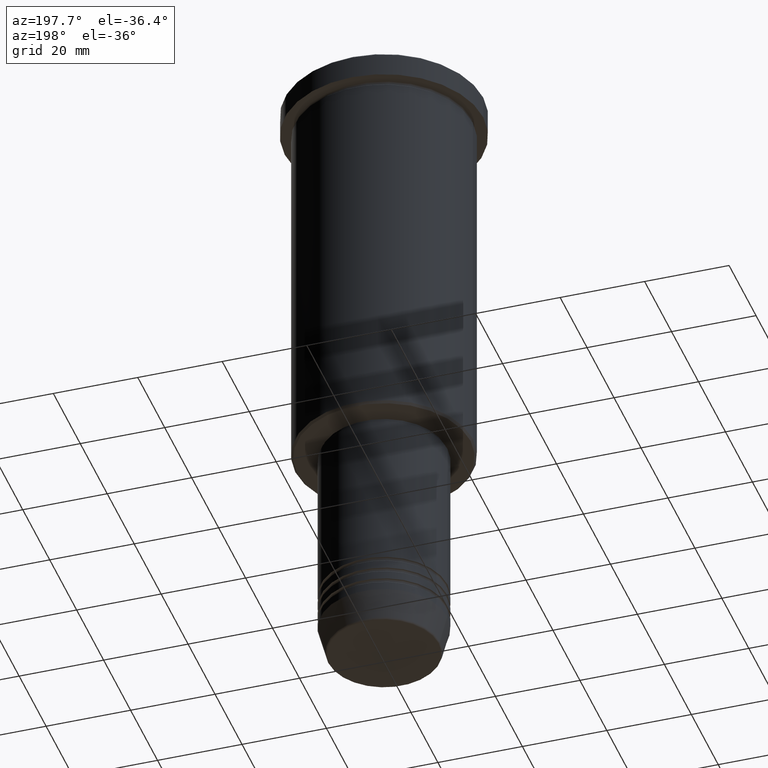
[diagram: clean part render]
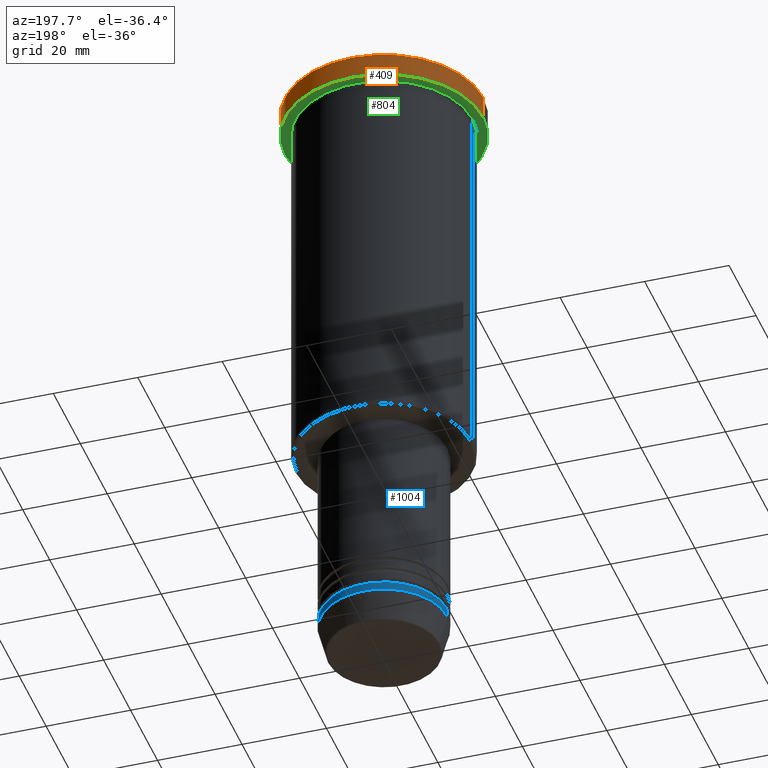
[diagram: same view with three faces highlighted in distinct colors, each labeled with its STEP entity id]
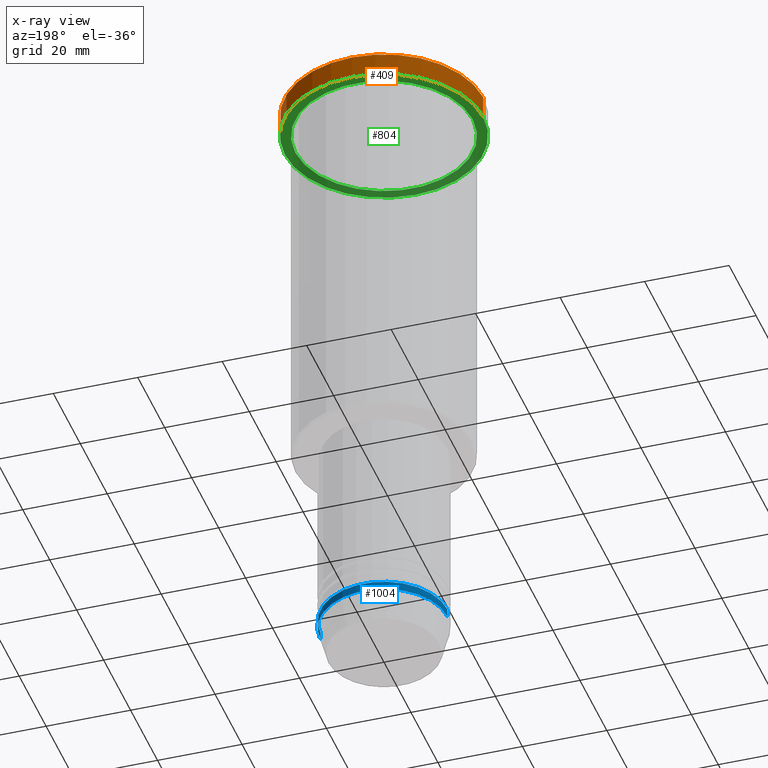
[diagram: x-ray of the same camera — body ghosted, the three highlighted faces saturated]
A machine part, auxiliary view with three faces highlighted in distinct colors.
The next image is the same camera in x-ray (body ghosted, the three faces saturated) — at least one of them is partly hidden behind the body in this view.
Their STEP definitions:

[orange] entity #409 — the highlighted cylindrical surface (partial cylindrical patch) has radius 23.5 mm, axis along (-0, -0, 1).
#33 = AXIS2_PLACEMENT_3D ( 'NONE', #295, #1105, #477 ) ;
#62 = ORIENTED_EDGE ( 'NONE', *, *, #923, .F. ) ;
#79 = ORIENTED_EDGE ( 'NONE', *, *, #1098, .T. ) ;
#119 = DIRECTION ( 'NONE',  ( 0.000000000000000000, 0.000000000000000000, -1.000000000000000000 ) ) ;
#143 = CARTESIAN_POINT ( 'NONE',  ( 23.50000000000000000, 0.000000000000000000, -0.5000000000000143219 ) ) ;
#187 = EDGE_CURVE ( 'NONE', #752, #719, #528, .T. ) ;
#210 = DIRECTION ( 'NONE',  ( 1.000000000000000000, 0.000000000000000000, 0.000000000000000000 ) ) ;
#239 = EDGE_LOOP ( 'NONE', ( #718, #79, #669, #62 ) ) ;
#295 = CARTESIAN_POINT ( 'NONE',  ( 0.000000000000000000, 0.000000000000000000, 0.000000000000000000 ) ) ;
#300 = DIRECTION ( 'NONE',  ( -0.000000000000000000, -0.000000000000000000, 1.000000000000000000 ) ) ;
#315 = VERTEX_POINT ( 'NONE', #143 ) ;
#337 = CARTESIAN_POINT ( 'NONE',  ( -23.50000000000000000, 2.877919977996280320E-15, -5.999999999999994671 ) ) ;
#376 = FACE_OUTER_BOUND ( 'NONE', #239, .T. ) ;
#387 = LINE ( 'NONE', #1108, #755 ) ;
#409 = ADVANCED_FACE ( 'NONE', ( #376 ), #829, .T. ) ;
#477 = DIRECTION ( 'NONE',  ( 1.000000000000000000, 0.000000000000000000, 0.000000000000000000 ) ) ;
#528 = CIRCLE ( 'NONE', #927, 23.50000000000000000 ) ;
#612 = EDGE_CURVE ( 'NONE', #948, #315, #765, .T. ) ;
#669 = ORIENTED_EDGE ( 'NONE', *, *, #612, .T. ) ;
#672 = CARTESIAN_POINT ( 'NONE',  ( 0.000000000000000000, 0.000000000000000000, -5.999999999999994671 ) ) ;
#677 = DIRECTION ( 'NONE',  ( 1.000000000000000000, 0.000000000000000000, 0.000000000000000000 ) ) ;
#718 = ORIENTED_EDGE ( 'NONE', *, *, #187, .T. ) ;
#719 = VERTEX_POINT ( 'NONE', #337 ) ;
#752 = VERTEX_POINT ( 'NONE', #809 ) ;
#755 = VECTOR ( 'NONE', #300, 1000.000000000000000 ) ;
#764 = CARTESIAN_POINT ( 'NONE',  ( -23.50000000000000000, 2.877919977996280320E-15, -0.5000000000000143219 ) ) ;
#765 = CIRCLE ( 'NONE', #1024, 23.50000000000000000 ) ;
#777 = VECTOR ( 'NONE', #797, 1000.000000000000000 ) ;
#797 = DIRECTION ( 'NONE',  ( -0.000000000000000000, -0.000000000000000000, 1.000000000000000000 ) ) ;
#809 = CARTESIAN_POINT ( 'NONE',  ( 23.50000000000000000, 0.000000000000000000, -5.999999999999994671 ) ) ;
#829 = CYLINDRICAL_SURFACE ( 'NONE', #33, 23.50000000000000000 ) ;
#847 = DIRECTION ( 'NONE',  ( -0.000000000000000000, -0.000000000000000000, 1.000000000000000000 ) ) ;
#923 = EDGE_CURVE ( 'NONE', #752, #315, #387, .T. ) ;
#927 = AXIS2_PLACEMENT_3D ( 'NONE', #672, #847, #677 ) ;
#937 = CARTESIAN_POINT ( 'NONE',  ( 0.000000000000000000, 0.000000000000000000, -0.5000000000000143219 ) ) ;
#948 = VERTEX_POINT ( 'NONE', #764 ) ;
#978 = LINE ( 'NONE', #1143, #777 ) ;
#1024 = AXIS2_PLACEMENT_3D ( 'NONE', #937, #119, #210 ) ;
#1098 = EDGE_CURVE ( 'NONE', #719, #948, #978, .T. ) ;
#1105 = DIRECTION ( 'NONE',  ( -0.000000000000000000, -0.000000000000000000, 1.000000000000000000 ) ) ;
#1108 = CARTESIAN_POINT ( 'NONE',  ( 23.50000000000000000, 0.000000000000000000, 0.000000000000000000 ) ) ;
#1143 = CARTESIAN_POINT ( 'NONE',  ( -23.50000000000000000, 2.877919977996280320E-15, 0.000000000000000000 ) ) ;

[blue] entity #1004 — the highlighted cylindrical surface (partial cylindrical patch) has radius 15 mm, axis along (-0, -0, 1).
#2 = EDGE_CURVE ( 'NONE', #724, #711, #452, .T. ) ;
#64 = CARTESIAN_POINT ( 'NONE',  ( 15.00000000000000000, 0.000000000000000000, -144.0000000000000284 ) ) ;
#77 = CARTESIAN_POINT ( 'NONE',  ( 15.00000000000000000, 0.000000000000000000, -142.0000000000000284 ) ) ;
#108 = CARTESIAN_POINT ( 'NONE',  ( -15.00000000000000000, 1.836970198721029589E-15, -144.0000000000000284 ) ) ;
#181 = VECTOR ( 'NONE', #1085, 1000.000000000000000 ) ;
#249 = ORIENTED_EDGE ( 'NONE', *, *, #871, .T. ) ;
#324 = CIRCLE ( 'NONE', #981, 15.00000000000000000 ) ;
#393 = EDGE_CURVE ( 'NONE', #724, #514, #324, .T. ) ;
#410 = CARTESIAN_POINT ( 'NONE',  ( 0.000000000000000000, 0.000000000000000000, -142.0000000000000284 ) ) ;
#445 = CARTESIAN_POINT ( 'NONE',  ( 15.00000000000000000, 0.000000000000000000, 0.000000000000000000 ) ) ;
#452 = LINE ( 'NONE', #445, #181 ) ;
#485 = FACE_OUTER_BOUND ( 'NONE', #967, .T. ) ;
#514 = VERTEX_POINT ( 'NONE', #108 ) ;
#572 = CARTESIAN_POINT ( 'NONE',  ( 0.000000000000000000, 0.000000000000000000, -144.0000000000000284 ) ) ;
#585 = EDGE_CURVE ( 'NONE', #711, #1077, #688, .T. ) ;
#595 = CARTESIAN_POINT ( 'NONE',  ( 0.000000000000000000, 0.000000000000000000, 0.000000000000000000 ) ) ;
#655 = ORIENTED_EDGE ( 'NONE', *, *, #393, .T. ) ;
#676 = DIRECTION ( 'NONE',  ( 1.000000000000000000, 0.000000000000000000, 0.000000000000000000 ) ) ;
#688 = CIRCLE ( 'NONE', #910, 15.00000000000000000 ) ;
#711 = VERTEX_POINT ( 'NONE', #77 ) ;
#724 = VERTEX_POINT ( 'NONE', #64 ) ;
#740 = DIRECTION ( 'NONE',  ( -0.000000000000000000, -0.000000000000000000, 1.000000000000000000 ) ) ;
#747 = LINE ( 'NONE', #753, #1046 ) ;
#753 = CARTESIAN_POINT ( 'NONE',  ( -15.00000000000000000, 1.836970198721029589E-15, 0.000000000000000000 ) ) ;
#871 = EDGE_CURVE ( 'NONE', #514, #1077, #747, .T. ) ;
#875 = ORIENTED_EDGE ( 'NONE', *, *, #585, .F. ) ;
#910 = AXIS2_PLACEMENT_3D ( 'NONE', #410, #1131, #676 ) ;
#921 = DIRECTION ( 'NONE',  ( -0.000000000000000000, -0.000000000000000000, 1.000000000000000000 ) ) ;
#967 = EDGE_LOOP ( 'NONE', ( #655, #249, #875, #1050 ) ) ;
#974 = CARTESIAN_POINT ( 'NONE',  ( -15.00000000000000000, 1.836970198721029589E-15, -142.0000000000000284 ) ) ;
#981 = AXIS2_PLACEMENT_3D ( 'NONE', #572, #921, #1109 ) ;
#1004 = ADVANCED_FACE ( 'NONE', ( #485 ), #1125, .T. ) ;
#1021 = DIRECTION ( 'NONE',  ( -0.000000000000000000, -0.000000000000000000, 1.000000000000000000 ) ) ;
#1026 = DIRECTION ( 'NONE',  ( 1.000000000000000000, 0.000000000000000000, 0.000000000000000000 ) ) ;
#1046 = VECTOR ( 'NONE', #740, 1000.000000000000000 ) ;
#1050 = ORIENTED_EDGE ( 'NONE', *, *, #2, .F. ) ;
#1077 = VERTEX_POINT ( 'NONE', #974 ) ;
#1085 = DIRECTION ( 'NONE',  ( -0.000000000000000000, -0.000000000000000000, 1.000000000000000000 ) ) ;
#1109 = DIRECTION ( 'NONE',  ( 1.000000000000000000, 0.000000000000000000, 0.000000000000000000 ) ) ;
#1112 = AXIS2_PLACEMENT_3D ( 'NONE', #595, #1021, #1026 ) ;
#1125 = CYLINDRICAL_SURFACE ( 'NONE', #1112, 15.00000000000000000 ) ;
#1131 = DIRECTION ( 'NONE',  ( -0.000000000000000000, -0.000000000000000000, 1.000000000000000000 ) ) ;

[green] entity #804 — the highlighted planar face has unit normal (0, 0, -1).
#1 = DIRECTION ( 'NONE',  ( -0.000000000000000000, -0.000000000000000000, 1.000000000000000000 ) ) ;
#5 = DIRECTION ( 'NONE',  ( 0.000000000000000000, 0.000000000000000000, -1.000000000000000000 ) ) ;
#12 = CIRCLE ( 'NONE', #396, 21.00000000000000000 ) ;
#34 = EDGE_CURVE ( 'NONE', #522, #490, #12, .T. ) ;
#83 = AXIS2_PLACEMENT_3D ( 'NONE', #956, #932, #209 ) ;
#86 = PLANE ( 'NONE',  #1139 ) ;
#101 = DIRECTION ( 'NONE',  ( -1.000000000000000000, 0.000000000000000000, -0.000000000000000000 ) ) ;
#123 = EDGE_LOOP ( 'NONE', ( #905, #599 ) ) ;
#147 = CIRCLE ( 'NONE', #985, 23.50000000000000000 ) ;
#187 = EDGE_CURVE ( 'NONE', #752, #719, #528, .T. ) ;
#209 = DIRECTION ( 'NONE',  ( -1.000000000000000000, 0.000000000000000000, 0.000000000000000000 ) ) ;
#237 = CARTESIAN_POINT ( 'NONE',  ( -21.00000000000000000, 0.000000000000000000, -5.999999999999994671 ) ) ;
#253 = DIRECTION ( 'NONE',  ( -0.000000000000000000, -0.000000000000000000, 1.000000000000000000 ) ) ;
#255 = ORIENTED_EDGE ( 'NONE', *, *, #187, .F. ) ;
#265 = CARTESIAN_POINT ( 'NONE',  ( 0.000000000000000000, 0.000000000000000000, -5.999999999999994671 ) ) ;
#337 = CARTESIAN_POINT ( 'NONE',  ( -23.50000000000000000, 2.877919977996280320E-15, -5.999999999999994671 ) ) ;
#396 = AXIS2_PLACEMENT_3D ( 'NONE', #632, #1, #542 ) ;
#442 = DIRECTION ( 'NONE',  ( 1.000000000000000000, 0.000000000000000000, 0.000000000000000000 ) ) ;
#490 = VERTEX_POINT ( 'NONE', #741 ) ;
#522 = VERTEX_POINT ( 'NONE', #237 ) ;
#528 = CIRCLE ( 'NONE', #927, 23.50000000000000000 ) ;
#542 = DIRECTION ( 'NONE',  ( -1.000000000000000000, 0.000000000000000000, 0.000000000000000000 ) ) ;
#544 = CIRCLE ( 'NONE', #83, 21.00000000000000000 ) ;
#599 = ORIENTED_EDGE ( 'NONE', *, *, #1032, .T. ) ;
#627 = EDGE_LOOP ( 'NONE', ( #255, #1120 ) ) ;
#632 = CARTESIAN_POINT ( 'NONE',  ( 0.000000000000000000, 0.000000000000000000, -5.999999999999994671 ) ) ;
#640 = FACE_OUTER_BOUND ( 'NONE', #627, .T. ) ;
#672 = CARTESIAN_POINT ( 'NONE',  ( 0.000000000000000000, 0.000000000000000000, -5.999999999999994671 ) ) ;
#677 = DIRECTION ( 'NONE',  ( 1.000000000000000000, 0.000000000000000000, 0.000000000000000000 ) ) ;
#719 = VERTEX_POINT ( 'NONE', #337 ) ;
#741 = CARTESIAN_POINT ( 'NONE',  ( 21.00000000000000000, 2.571758278209441661E-15, -5.999999999999994671 ) ) ;
#752 = VERTEX_POINT ( 'NONE', #809 ) ;
#756 = EDGE_CURVE ( 'NONE', #719, #752, #147, .T. ) ;
#804 = ADVANCED_FACE ( 'NONE', ( #906, #640 ), #86, .T. ) ;
#809 = CARTESIAN_POINT ( 'NONE',  ( 23.50000000000000000, 0.000000000000000000, -5.999999999999994671 ) ) ;
#847 = DIRECTION ( 'NONE',  ( -0.000000000000000000, -0.000000000000000000, 1.000000000000000000 ) ) ;
#905 = ORIENTED_EDGE ( 'NONE', *, *, #34, .T. ) ;
#906 = FACE_BOUND ( 'NONE', #123, .T. ) ;
#914 = CARTESIAN_POINT ( 'NONE',  ( 0.000000000000000000, 23.50000000000000000, -5.999999999999994671 ) ) ;
#927 = AXIS2_PLACEMENT_3D ( 'NONE', #672, #847, #677 ) ;
#932 = DIRECTION ( 'NONE',  ( -0.000000000000000000, -0.000000000000000000, 1.000000000000000000 ) ) ;
#956 = CARTESIAN_POINT ( 'NONE',  ( 0.000000000000000000, 0.000000000000000000, -5.999999999999994671 ) ) ;
#985 = AXIS2_PLACEMENT_3D ( 'NONE', #265, #253, #442 ) ;
#1032 = EDGE_CURVE ( 'NONE', #490, #522, #544, .T. ) ;
#1120 = ORIENTED_EDGE ( 'NONE', *, *, #756, .F. ) ;
#1139 = AXIS2_PLACEMENT_3D ( 'NONE', #914, #5, #101 ) ;